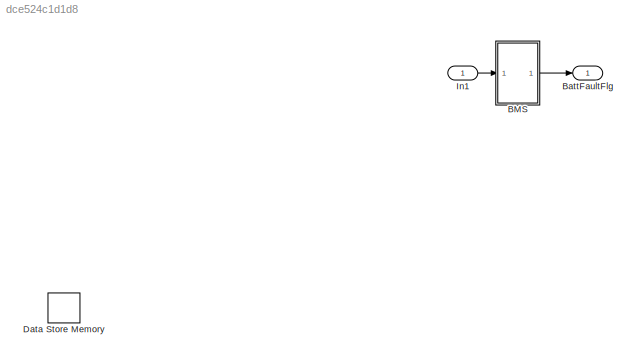
MODEL slx_dce524c1d1d8
KIND model
CONFIG AbsTol = auto
CONFIG EnableMultiTasking = off
CONFIG FixedStep = 0.005
CONFIG MaxStep = auto
CONFIG MinStep = auto
CONFIG RelTol = 1e-3
CONFIG SampleTimeConstraint = Unconstrained
CONFIG SolverName = ode4
CONFIG StartTime = 0.0
CONFIG StopTime = 2
WORKSPACE source: mxarray member
WORKSPACE CBM_CellMaxVCutOffTrue: Simulink.Parameter (value not decoded)
WORKSPACE CBM_CellMaxVDerateTrue: Simulink.Parameter (value not decoded)
WORKSPACE CBM_CellMaxVWarningFalse: Simulink.Parameter (value not decoded)
WORKSPACE CBM_CellMaxVWarningTrue: Simulink.Parameter (value not decoded)
WORKSPACE CBM_CellMinVCutOffTrue: Simulink.Parameter (value not decoded)
WORKSPACE CBM_CellMinVDerateTrue: Simulink.Parameter (value not decoded)
WORKSPACE CBM_CellMinVWarningFalse: Simulink.Parameter (value not decoded)
WORKSPACE CBM_CellMinVWarningTrue: Simulink.Parameter (value not decoded)
WORKSPACE CBM_VCellMaxCutoffTh_P: Simulink.Parameter (value not decoded)
WORKSPACE CBM_VCellMaxDerateTh_P: Simulink.Parameter (value not decoded)
WORKSPACE CBM_VCellMaxWarnTh_P: Simulink.Parameter (value not decoded)
WORKSPACE CBM_VCellMinCutoffTh_P: Simulink.Parameter (value not decoded)
WORKSPACE CBM_VCellMinDerateTh_P: Simulink.Parameter (value not decoded)
WORKSPACE CBM_VCellMinWarnTh_P: Simulink.Parameter (value not decoded)
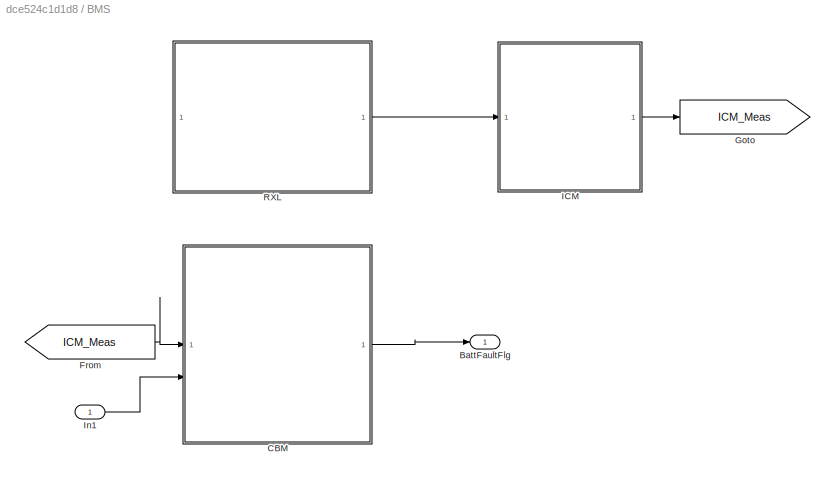
BLOCK [SubSystem] BMS
BLOCK [Outport] BMS/BattFaultFlg
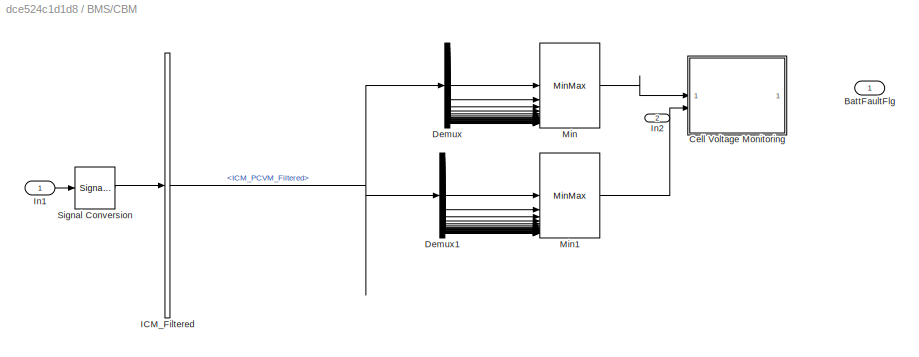
BLOCK [SubSystem] BMS/CBM
BLOCK [Outport] BMS/CBM/BattFaultFlg
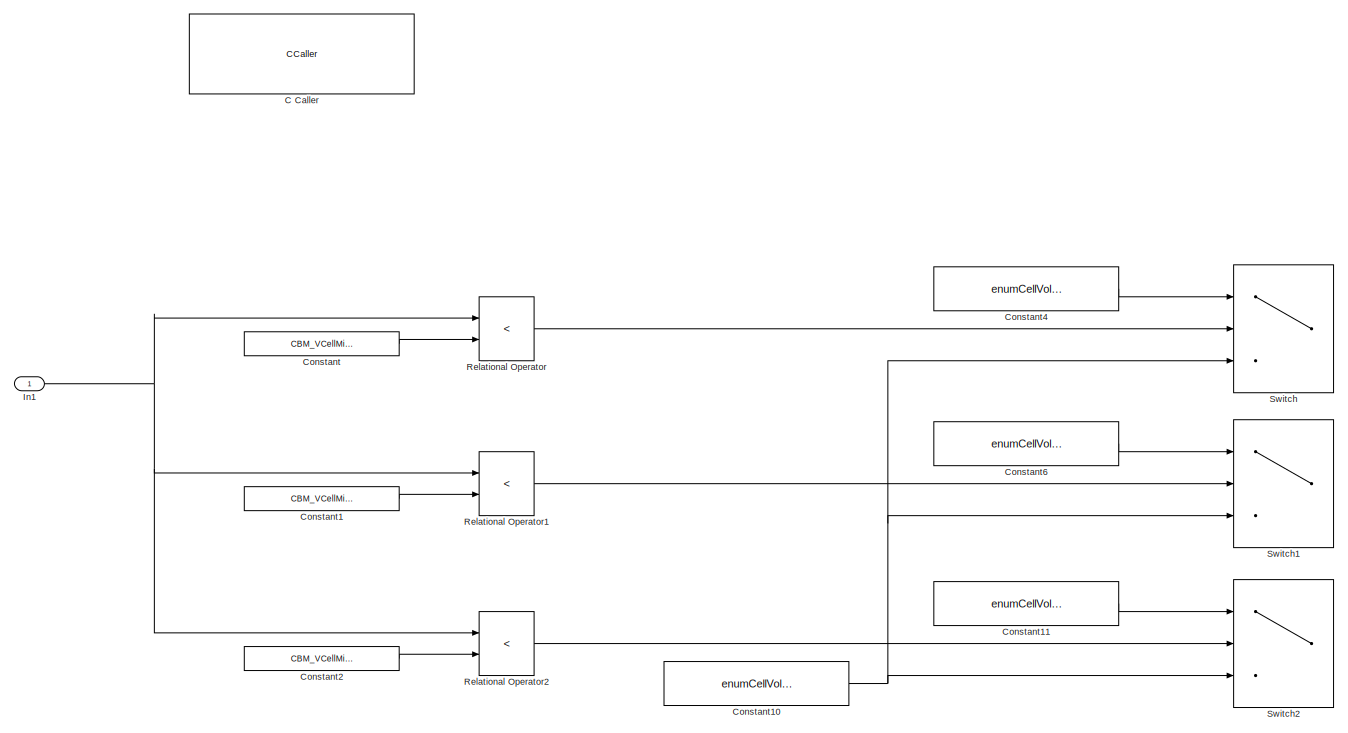
[diagram: BMS/CBM/Cell Voltage Monitoring - part 1/2, full width, top band]
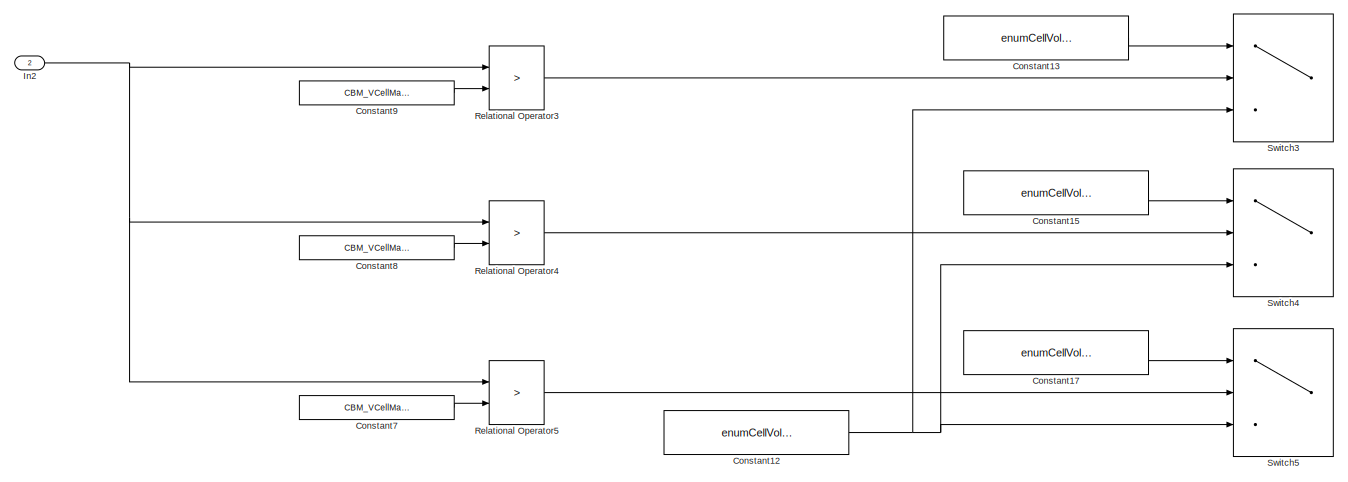
[diagram: BMS/CBM/Cell Voltage Monitoring - part 2/2, full width, bottom band]
BLOCK [SubSystem] BMS/CBM/Cell Voltage Monitoring
BLOCK [CCaller] BMS/CBM/Cell Voltage Monitoring/C Caller
  FunctionName = SystemGetVoltage
  PortSpecificationStruct = %)30     .    T ,   8    (     @         %    "     (    !     0         %  0 "0    $    _    07)G3F%M90  4&]R=$YA;64 4V-O<&4     26YD97@     5'EP90      4VEZ90      27-';&]B86P   X    P    !@    @    $          4    (     0    ,    !         !   P!O=70 #@   #     &    "     0         !0    @    !     P    $         $  # &]U=  .    .     8    (    !          %    "     $    &     0         0    !@...<+914ch>
  SampleTime = -1
  channel = BVM
BLOCK [Constant] BMS/CBM/Cell Voltage Monitoring/Constant
  Value = CBM_VCellMinCutoffTh_P
BLOCK [Constant] BMS/CBM/Cell Voltage Monitoring/Constant1
  Value = CBM_VCellMinDerateTh_P
BLOCK [Constant] BMS/CBM/Cell Voltage Monitoring/Constant10
  Value = enumCellVoltState.NORMAL
BLOCK [Constant] BMS/CBM/Cell Voltage Monitoring/Constant11
  Value = enumCellVoltState.WARNING
BLOCK [Constant] BMS/CBM/Cell Voltage Monitoring/Constant12
  Value = enumCellVoltState.NORMAL
BLOCK [Constant] BMS/CBM/Cell Voltage Monitoring/Constant13
  Value = enumCellVoltState.WARNING
BLOCK [Constant] BMS/CBM/Cell Voltage Monitoring/Constant15
  Value = enumCellVoltState.DERATE
BLOCK [Constant] BMS/CBM/Cell Voltage Monitoring/Constant17
  Value = enumCellVoltState.CUT_OFF
BLOCK [Constant] BMS/CBM/Cell Voltage Monitoring/Constant2
  Value = CBM_VCellMinWarnTh_P
BLOCK [Constant] BMS/CBM/Cell Voltage Monitoring/Constant4
  Value = enumCellVoltState.CUT_OFF
BLOCK [Constant] BMS/CBM/Cell Voltage Monitoring/Constant6
  Value = enumCellVoltState.DERATE
BLOCK [Constant] BMS/CBM/Cell Voltage Monitoring/Constant7
  Value = CBM_VCellMaxCutoffTh_P
BLOCK [Constant] BMS/CBM/Cell Voltage Monitoring/Constant8
  Value = CBM_VCellMaxDerateTh_P
BLOCK [Constant] BMS/CBM/Cell Voltage Monitoring/Constant9
  Value = CBM_VCellMaxWarnTh_P
BLOCK [Inport] BMS/CBM/Cell Voltage Monitoring/In1
BLOCK [Inport] BMS/CBM/Cell Voltage Monitoring/In2
  Port = 2
BLOCK [RelationalOperator] BMS/CBM/Cell Voltage Monitoring/Relational Operator
  InputSameDT = off
  Operator = <
  OutDataTypeStr = boolean
  RndMeth = Simplest
BLOCK [RelationalOperator] BMS/CBM/Cell Voltage Monitoring/Relational Operator1
  InputSameDT = off
  Operator = <
  OutDataTypeStr = boolean
  RndMeth = Simplest
BLOCK [RelationalOperator] BMS/CBM/Cell Voltage Monitoring/Relational Operator2
  InputSameDT = off
  Operator = <
  OutDataTypeStr = boolean
  RndMeth = Simplest
BLOCK [RelationalOperator] BMS/CBM/Cell Voltage Monitoring/Relational Operator3
  InputSameDT = off
  Operator = >
  OutDataTypeStr = boolean
  RndMeth = Simplest
BLOCK [RelationalOperator] BMS/CBM/Cell Voltage Monitoring/Relational Operator4
  InputSameDT = off
  Operator = >
  OutDataTypeStr = boolean
  RndMeth = Simplest
BLOCK [RelationalOperator] BMS/CBM/Cell Voltage Monitoring/Relational Operator5
  InputSameDT = off
  Operator = >
  OutDataTypeStr = boolean
  RndMeth = Simplest
BLOCK [Switch] BMS/CBM/Cell Voltage Monitoring/Switch
  Criteria = u2 > Threshold
  InputSameDT = off
  SaturateOnIntegerOverflow = off
BLOCK [Switch] BMS/CBM/Cell Voltage Monitoring/Switch1
  Criteria = u2 > Threshold
  InputSameDT = off
  SaturateOnIntegerOverflow = off
BLOCK [Switch] BMS/CBM/Cell Voltage Monitoring/Switch2
  Criteria = u2 > Threshold
  InputSameDT = off
  SaturateOnIntegerOverflow = off
BLOCK [Switch] BMS/CBM/Cell Voltage Monitoring/Switch3
  Criteria = u2 > Threshold
  InputSameDT = off
  SaturateOnIntegerOverflow = off
BLOCK [Switch] BMS/CBM/Cell Voltage Monitoring/Switch4
  Criteria = u2 > Threshold
  InputSameDT = off
  SaturateOnIntegerOverflow = off
BLOCK [Switch] BMS/CBM/Cell Voltage Monitoring/Switch5
  Criteria = u2 > Threshold
  InputSameDT = off
  SaturateOnIntegerOverflow = off
BLOCK [Demux] BMS/CBM/Demux
  Outputs = 18
BLOCK [Demux] BMS/CBM/Demux1
  Outputs = 18
BLOCK [BusSelector] BMS/CBM/ICM_Filtered
  OutputSignals = ICM_PCVM_Filtered,ICM_BVM_Filtered,ICM_AVM_Filtered,ICM_TEMPERATURE_Filtered
BLOCK [Inport] BMS/CBM/In1
BLOCK [Inport] BMS/CBM/In2
  Port = 2
BLOCK [MinMax] BMS/CBM/Min
  Inputs = 18
BLOCK [MinMax] BMS/CBM/Min1
  Function = max
  Inputs = 18
BLOCK [SignalConversion] BMS/CBM/Signal Conversion
  OverrideOpt = on
BLOCK [From] BMS/From
  GotoTag = ICM_Meas
BLOCK [Goto] BMS/Goto
  GotoTag = ICM_Meas
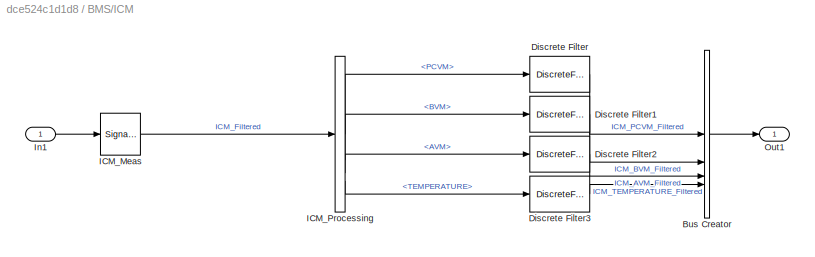
BLOCK [SubSystem] BMS/ICM
BLOCK [BusCreator] BMS/ICM/Bus Creator
  DisplayOption = bar
  InheritFromInputs = on
  Inputs = 4
BLOCK [DiscreteFilter] BMS/ICM/Discrete Filter
  Denominator = [1 -0.95]
  InputPortMap = u0
  Numerator = [0.05]
  a0EqualsOne = on
BLOCK [DiscreteFilter] BMS/ICM/Discrete Filter1
  Denominator = [1 -0.95]
  InputPortMap = u0
  Numerator = [0.05]
  a0EqualsOne = on
BLOCK [DiscreteFilter] BMS/ICM/Discrete Filter2
  Denominator = [1 -0.95]
  InputPortMap = u0
  Numerator = [0.05]
  a0EqualsOne = on
BLOCK [DiscreteFilter] BMS/ICM/Discrete Filter3
  Denominator = [1 -0.95]
  InputPortMap = u0
  Numerator = [0.05]
  a0EqualsOne = on
BLOCK [SignalConversion] BMS/ICM/ICM_Meas
  OverrideOpt = on
BLOCK [BusSelector] BMS/ICM/ICM_Processing
  OutputSignals = PCVM,BVM,AVM,TEMPERATURE
BLOCK [Inport] BMS/ICM/In1
BLOCK [Outport] BMS/ICM/Out1
BLOCK [Inport] BMS/In1
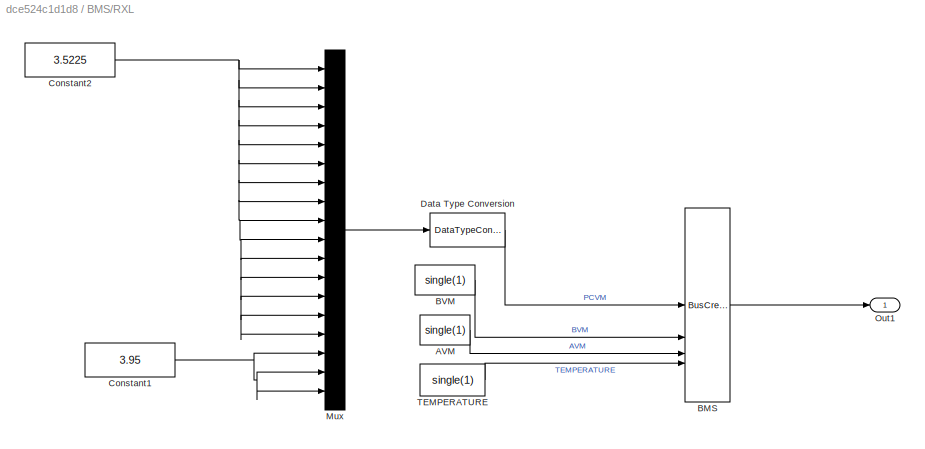
BLOCK [SubSystem] BMS/RXL
BLOCK [Constant] BMS/RXL/AVM
  OutDataTypeStr = single
  Value = single(1)
BLOCK [BusCreator] BMS/RXL/BMS
  DisplayOption = bar
  InheritFromInputs = on
  Inputs = 4
  NonVirtualBus = on
  OutDataTypeStr = Bus: Rxl_BMS
BLOCK [Constant] BMS/RXL/BVM
  OutDataTypeStr = single
  Value = single(1)
BLOCK [Constant] BMS/RXL/Constant1
  OutDataTypeStr = double
  Value = 3.95
BLOCK [Constant] BMS/RXL/Constant2
  OutDataTypeStr = double
  Value = 3.5225
BLOCK [DataTypeConversion] BMS/RXL/Data Type Conversion
  RndMeth = Floor
  SaturateOnIntegerOverflow = off
BLOCK [Mux] BMS/RXL/Mux
  DisplayOption = bar
  Inputs = 18
BLOCK [Outport] BMS/RXL/Out1
BLOCK [Constant] BMS/RXL/TEMPERATURE
  OutDataTypeStr = single
  Value = single(1)
BLOCK [Outport] BattFaultFlg
BLOCK [DataStoreMemory] Data Store Memory
  DataStoreName = ICM_BVM_Raw
  ShowAdditionalParam = off
  WriteAfterWriteMsg = warning
BLOCK [Inport] In1
NET BMS/CBM/Cell Voltage Monitoring/Constant10:1 -> BMS/CBM/Cell Voltage Monitoring/Switch1:3, BMS/CBM/Cell Voltage Monitoring/Switch2:3, BMS/CBM/Cell Voltage Monitoring/Switch:3
LINE BMS/CBM/Cell Voltage Monitoring/Constant11:1 -> BMS/CBM/Cell Voltage Monitoring/Switch2:1
NET BMS/CBM/Cell Voltage Monitoring/Constant12:1 -> BMS/CBM/Cell Voltage Monitoring/Switch3:3, BMS/CBM/Cell Voltage Monitoring/Switch4:3, BMS/CBM/Cell Voltage Monitoring/Switch5:3
LINE BMS/CBM/Cell Voltage Monitoring/Constant13:1 -> BMS/CBM/Cell Voltage Monitoring/Switch3:1
LINE BMS/CBM/Cell Voltage Monitoring/Constant15:1 -> BMS/CBM/Cell Voltage Monitoring/Switch4:1
LINE BMS/CBM/Cell Voltage Monitoring/Constant17:1 -> BMS/CBM/Cell Voltage Monitoring/Switch5:1
LINE BMS/CBM/Cell Voltage Monitoring/Constant1:1 -> BMS/CBM/Cell Voltage Monitoring/Relational Operator1:2
LINE BMS/CBM/Cell Voltage Monitoring/Constant2:1 -> BMS/CBM/Cell Voltage Monitoring/Relational Operator2:2
LINE BMS/CBM/Cell Voltage Monitoring/Constant4:1 -> BMS/CBM/Cell Voltage Monitoring/Switch:1
LINE BMS/CBM/Cell Voltage Monitoring/Constant6:1 -> BMS/CBM/Cell Voltage Monitoring/Switch1:1
LINE BMS/CBM/Cell Voltage Monitoring/Constant7:1 -> BMS/CBM/Cell Voltage Monitoring/Relational Operator5:2
LINE BMS/CBM/Cell Voltage Monitoring/Constant8:1 -> BMS/CBM/Cell Voltage Monitoring/Relational Operator4:2
LINE BMS/CBM/Cell Voltage Monitoring/Constant9:1 -> BMS/CBM/Cell Voltage Monitoring/Relational Operator3:2
LINE BMS/CBM/Cell Voltage Monitoring/Constant:1 -> BMS/CBM/Cell Voltage Monitoring/Relational Operator:2
NET BMS/CBM/Cell Voltage Monitoring/In1:1 -> BMS/CBM/Cell Voltage Monitoring/Relational Operator1:1, BMS/CBM/Cell Voltage Monitoring/Relational Operator2:1, BMS/CBM/Cell Voltage Monitoring/Relational Operator:1
NET BMS/CBM/Cell Voltage Monitoring/In2:1 -> BMS/CBM/Cell Voltage Monitoring/Relational Operator3:1, BMS/CBM/Cell Voltage Monitoring/Relational Operator4:1, BMS/CBM/Cell Voltage Monitoring/Relational Operator5:1
LINE BMS/CBM/Cell Voltage Monitoring/Relational Operator1:1 -> BMS/CBM/Cell Voltage Monitoring/Switch1:2
LINE BMS/CBM/Cell Voltage Monitoring/Relational Operator2:1 -> BMS/CBM/Cell Voltage Monitoring/Switch2:2
LINE BMS/CBM/Cell Voltage Monitoring/Relational Operator3:1 -> BMS/CBM/Cell Voltage Monitoring/Switch3:2
LINE BMS/CBM/Cell Voltage Monitoring/Relational Operator4:1 -> BMS/CBM/Cell Voltage Monitoring/Switch4:2
LINE BMS/CBM/Cell Voltage Monitoring/Relational Operator5:1 -> BMS/CBM/Cell Voltage Monitoring/Switch5:2
LINE BMS/CBM/Cell Voltage Monitoring/Relational Operator:1 -> BMS/CBM/Cell Voltage Monitoring/Switch:2
LINE BMS/CBM/Demux1:1 -> BMS/CBM/Min1:1
LINE BMS/CBM/Demux1:10 -> BMS/CBM/Min1:10
LINE BMS/CBM/Demux1:11 -> BMS/CBM/Min1:11
LINE BMS/CBM/Demux1:12 -> BMS/CBM/Min1:12
LINE BMS/CBM/Demux1:13 -> BMS/CBM/Min1:13
LINE BMS/CBM/Demux1:14 -> BMS/CBM/Min1:14
LINE BMS/CBM/Demux1:15 -> BMS/CBM/Min1:15
LINE BMS/CBM/Demux1:16 -> BMS/CBM/Min1:16
LINE BMS/CBM/Demux1:17 -> BMS/CBM/Min1:17
LINE BMS/CBM/Demux1:18 -> BMS/CBM/Min1:18
LINE BMS/CBM/Demux1:2 -> BMS/CBM/Min1:2
LINE BMS/CBM/Demux1:3 -> BMS/CBM/Min1:3
LINE BMS/CBM/Demux1:4 -> BMS/CBM/Min1:4
LINE BMS/CBM/Demux1:5 -> BMS/CBM/Min1:5
LINE BMS/CBM/Demux1:6 -> BMS/CBM/Min1:6
LINE BMS/CBM/Demux1:7 -> BMS/CBM/Min1:7
LINE BMS/CBM/Demux1:8 -> BMS/CBM/Min1:8
LINE BMS/CBM/Demux1:9 -> BMS/CBM/Min1:9
LINE BMS/CBM/Demux:1 -> BMS/CBM/Min:1
LINE BMS/CBM/Demux:10 -> BMS/CBM/Min:10
LINE BMS/CBM/Demux:11 -> BMS/CBM/Min:11
LINE BMS/CBM/Demux:12 -> BMS/CBM/Min:12
LINE BMS/CBM/Demux:13 -> BMS/CBM/Min:13
LINE BMS/CBM/Demux:14 -> BMS/CBM/Min:14
LINE BMS/CBM/Demux:15 -> BMS/CBM/Min:15
LINE BMS/CBM/Demux:16 -> BMS/CBM/Min:16
LINE BMS/CBM/Demux:17 -> BMS/CBM/Min:17
LINE BMS/CBM/Demux:18 -> BMS/CBM/Min:18
LINE BMS/CBM/Demux:2 -> BMS/CBM/Min:2
LINE BMS/CBM/Demux:3 -> BMS/CBM/Min:3
LINE BMS/CBM/Demux:4 -> BMS/CBM/Min:4
LINE BMS/CBM/Demux:5 -> BMS/CBM/Min:5
LINE BMS/CBM/Demux:6 -> BMS/CBM/Min:6
LINE BMS/CBM/Demux:7 -> BMS/CBM/Min:7
LINE BMS/CBM/Demux:8 -> BMS/CBM/Min:8
LINE BMS/CBM/Demux:9 -> BMS/CBM/Min:9
NET BMS/CBM/ICM_Filtered:1 -> BMS/CBM/Demux1:1, BMS/CBM/Demux:1
LINE BMS/CBM/In1:1 -> BMS/CBM/Signal Conversion:1
LINE BMS/CBM/Min1:1 -> BMS/CBM/Cell Voltage Monitoring:2
LINE BMS/CBM/Min:1 -> BMS/CBM/Cell Voltage Monitoring:1
LINE BMS/CBM/Signal Conversion:1 -> BMS/CBM/ICM_Filtered:1
LINE BMS/CBM:1 -> BMS/BattFaultFlg:1
LINE BMS/From:1 -> BMS/CBM:1
LINE BMS/ICM/Bus Creator:1 -> BMS/ICM/Out1:1
LINE BMS/ICM/Discrete Filter1:1 -> BMS/ICM/Bus Creator:2
LINE BMS/ICM/Discrete Filter2:1 -> BMS/ICM/Bus Creator:3
LINE BMS/ICM/Discrete Filter3:1 -> BMS/ICM/Bus Creator:4
LINE BMS/ICM/Discrete Filter:1 -> BMS/ICM/Bus Creator:1
LINE BMS/ICM/ICM_Meas:1 -> BMS/ICM/ICM_Processing:1
LINE BMS/ICM/ICM_Processing:1 -> BMS/ICM/Discrete Filter:1
LINE BMS/ICM/ICM_Processing:2 -> BMS/ICM/Discrete Filter1:1
LINE BMS/ICM/ICM_Processing:3 -> BMS/ICM/Discrete Filter2:1
LINE BMS/ICM/ICM_Processing:4 -> BMS/ICM/Discrete Filter3:1
LINE BMS/ICM/In1:1 -> BMS/ICM/ICM_Meas:1
LINE BMS/ICM:1 -> BMS/Goto:1
LINE BMS/In1:1 -> BMS/CBM:2
LINE BMS/RXL/AVM:1 -> BMS/RXL/BMS:3
LINE BMS/RXL/BMS:1 -> BMS/RXL/Out1:1
LINE BMS/RXL/BVM:1 -> BMS/RXL/BMS:2
NET BMS/RXL/Constant1:1 -> BMS/RXL/Mux:16, BMS/RXL/Mux:17, BMS/RXL/Mux:18
NET BMS/RXL/Constant2:1 -> BMS/RXL/Mux:1, BMS/RXL/Mux:10, BMS/RXL/Mux:11, BMS/RXL/Mux:12, BMS/RXL/Mux:13, BMS/RXL/Mux:14, BMS/RXL/Mux:15, BMS/RXL/Mux:2, BMS/RXL/Mux:3, BMS/RXL/Mux:4, BMS/RXL/Mux:5, BMS/RXL/Mux:6, BMS/RXL/Mux:7, BMS/RXL/Mux:8, BMS/RXL/Mux:9
LINE BMS/RXL/Data Type Conversion:1 -> BMS/RXL/BMS:1
LINE BMS/RXL/Mux:1 -> BMS/RXL/Data Type Conversion:1
LINE BMS/RXL/TEMPERATURE:1 -> BMS/RXL/BMS:4
LINE BMS/RXL:1 -> BMS/ICM:1
LINE BMS:1 -> BattFaultFlg:1
LINE In1:1 -> BMS:1
note: NET lines group one-source signal fan-out (src -> all destinations, sorted); 1:1 wires keep LINE
